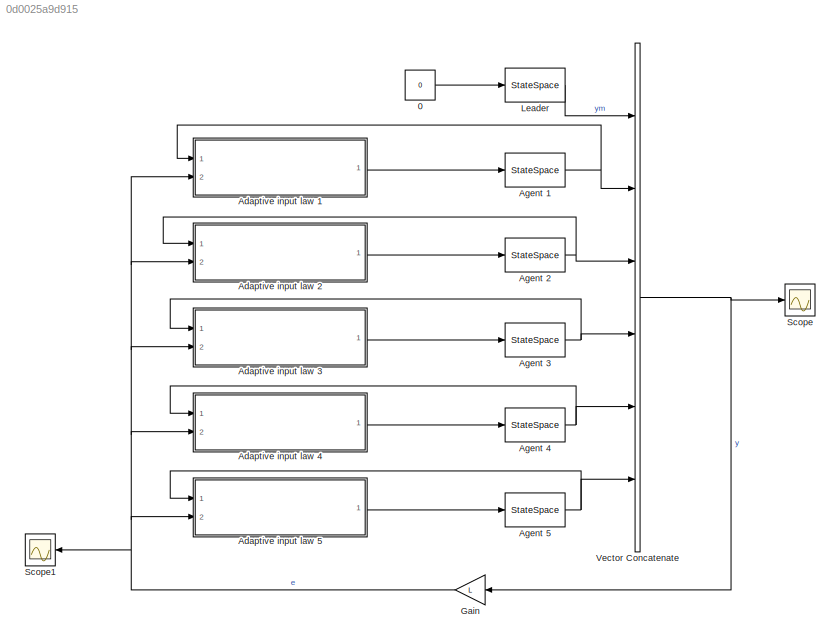
MODEL slx_0d0025a9d915
KIND model
CONFIG AbsTol = auto
CONFIG FixedStep = auto
CONFIG MaxStep = 0.01
CONFIG MinStep = auto
CONFIG RelTol = 1e-3
CONFIG SampleTimeConstraint = Unconstrained
CONFIG Solver = ode23tb
CONFIG SolverMode = SingleTasking
CONFIG SolverName = ode23tb
CONFIG StartTime = 0.0
CONFIG StopTime = 25
BLOCK [Constant] 0
  Value = 0
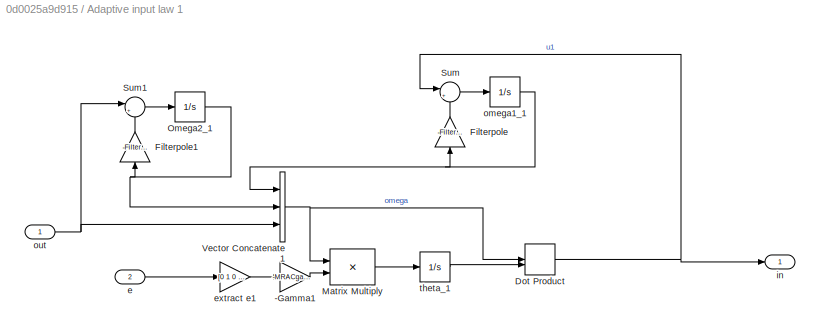
BLOCK [SubSystem] Adaptive input law 1
  Ports = [2, 1]
  RequestExecContextInheritance = off
BLOCK [Gain] Adaptive input law 1/-Gamma1
  Gain = -MRACgam1
  OutDataTypeStr = Inherit: Inherit via internal rule
  ParamDataTypeStr = Inherit: Inherit via internal rule
  SaturateOnIntegerOverflow = off
BLOCK [DotProduct] Adaptive input law 1/Dot Product
  OutDataTypeStr = Inherit: Inherit via internal rule
BLOCK [Gain] Adaptive input law 1/Filterpole
  Gain = -Filterpole
  OutDataTypeStr = Inherit: Inherit via internal rule
  ParamDataTypeStr = Inherit: Inherit via internal rule
  SaturateOnIntegerOverflow = off
BLOCK [Gain] Adaptive input law 1/Filterpole1
  Gain = -Filterpole
  OutDataTypeStr = Inherit: Inherit via internal rule
  ParamDataTypeStr = Inherit: Inherit via internal rule
  SaturateOnIntegerOverflow = off
BLOCK [Product] Adaptive input law 1/Matrix Multiply
  InputSameDT = off
  OutDataTypeStr = Inherit: Inherit via internal rule
  Ports = [2, 1]
  RndMeth = Floor
  SaturateOnIntegerOverflow = off
BLOCK [Integrator] Adaptive input law 1/Omega2_1
  InitialCondition = 1
  Ports = [1, 1]
BLOCK [Sum] Adaptive input law 1/Sum
  IconShape = round
  InputSameDT = off
  Inputs = |+-
  OutDataTypeStr = Inherit: Inherit via internal rule
  Ports = [2, 1]
  SaturateOnIntegerOverflow = off
BLOCK [Sum] Adaptive input law 1/Sum1
  IconShape = round
  InputSameDT = off
  Inputs = |+-
  OutDataTypeStr = Inherit: Inherit via internal rule
  Ports = [2, 1]
  SaturateOnIntegerOverflow = off
BLOCK [Concatenate] Adaptive input law 1/Vector Concatenate1
  NumInputs = 3
  Ports = [3, 1]
BLOCK [Inport] Adaptive input law 1/e
  IconDisplay = Port number
  Port = 2
BLOCK [Gain] Adaptive input law 1/extract e1
  Gain = [0 1 0 0 0 0]
  Multiplication = Matrix(K*u)
  OutDataTypeStr = Inherit: Inherit via internal rule
  ParamDataTypeStr = Inherit: Inherit via internal rule
  SaturateOnIntegerOverflow = off
BLOCK [Outport] Adaptive input law 1/in
  IconDisplay = Port number
BLOCK [Integrator] Adaptive input law 1/omega1_1
  InitialCondition = 1
  Ports = [1, 1]
BLOCK [Inport] Adaptive input law 1/out
  IconDisplay = Port number
BLOCK [Integrator] Adaptive input law 1/theta_1
  InitialCondition = [1;1;1]
  Ports = [1, 1]
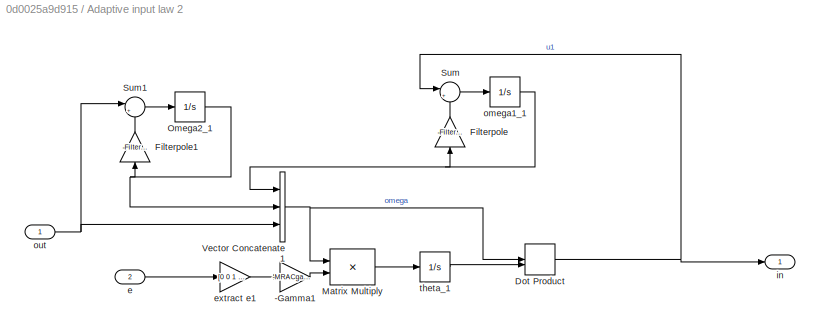
BLOCK [SubSystem] Adaptive input law 2
  Ports = [2, 1]
  RequestExecContextInheritance = off
BLOCK [Gain] Adaptive input law 2/-Gamma1
  Gain = -MRACgam2
  OutDataTypeStr = Inherit: Inherit via internal rule
  ParamDataTypeStr = Inherit: Inherit via internal rule
  SaturateOnIntegerOverflow = off
BLOCK [DotProduct] Adaptive input law 2/Dot Product
  OutDataTypeStr = Inherit: Inherit via internal rule
BLOCK [Gain] Adaptive input law 2/Filterpole
  Gain = -Filterpole
  OutDataTypeStr = Inherit: Inherit via internal rule
  ParamDataTypeStr = Inherit: Inherit via internal rule
  SaturateOnIntegerOverflow = off
BLOCK [Gain] Adaptive input law 2/Filterpole1
  Gain = -Filterpole
  OutDataTypeStr = Inherit: Inherit via internal rule
  ParamDataTypeStr = Inherit: Inherit via internal rule
  SaturateOnIntegerOverflow = off
BLOCK [Product] Adaptive input law 2/Matrix Multiply
  InputSameDT = off
  OutDataTypeStr = Inherit: Inherit via internal rule
  Ports = [2, 1]
  RndMeth = Floor
  SaturateOnIntegerOverflow = off
BLOCK [Integrator] Adaptive input law 2/Omega2_1
  InitialCondition = 1
  Ports = [1, 1]
BLOCK [Sum] Adaptive input law 2/Sum
  IconShape = round
  InputSameDT = off
  Inputs = |+-
  OutDataTypeStr = Inherit: Inherit via internal rule
  Ports = [2, 1]
  SaturateOnIntegerOverflow = off
BLOCK [Sum] Adaptive input law 2/Sum1
  IconShape = round
  InputSameDT = off
  Inputs = |+-
  OutDataTypeStr = Inherit: Inherit via internal rule
  Ports = [2, 1]
  SaturateOnIntegerOverflow = off
BLOCK [Concatenate] Adaptive input law 2/Vector Concatenate1
  NumInputs = 3
  Ports = [3, 1]
BLOCK [Inport] Adaptive input law 2/e
  IconDisplay = Port number
  Port = 2
BLOCK [Gain] Adaptive input law 2/extract e1
  Gain = [0 0 1 0 0 0]
  Multiplication = Matrix(K*u)
  OutDataTypeStr = Inherit: Inherit via internal rule
  ParamDataTypeStr = Inherit: Inherit via internal rule
  SaturateOnIntegerOverflow = off
BLOCK [Outport] Adaptive input law 2/in
  IconDisplay = Port number
BLOCK [Integrator] Adaptive input law 2/omega1_1
  InitialCondition = 1
  Ports = [1, 1]
BLOCK [Inport] Adaptive input law 2/out
  IconDisplay = Port number
BLOCK [Integrator] Adaptive input law 2/theta_1
  InitialCondition = [1;1;1]
  Ports = [1, 1]
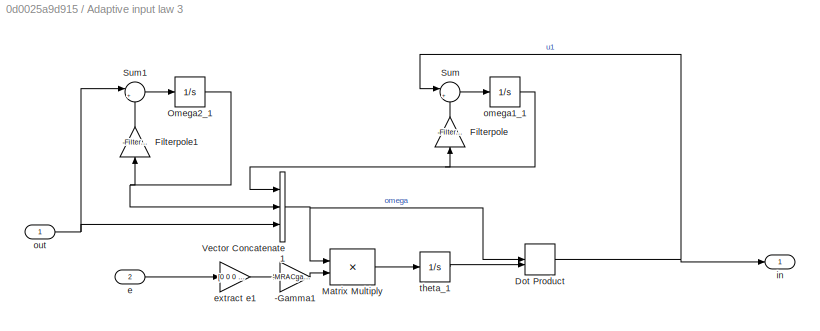
BLOCK [SubSystem] Adaptive input law 3
  Ports = [2, 1]
  RequestExecContextInheritance = off
BLOCK [Gain] Adaptive input law 3/-Gamma1
  Gain = -MRACgam3
  OutDataTypeStr = Inherit: Inherit via internal rule
  ParamDataTypeStr = Inherit: Inherit via internal rule
  SaturateOnIntegerOverflow = off
BLOCK [DotProduct] Adaptive input law 3/Dot Product
  OutDataTypeStr = Inherit: Inherit via internal rule
BLOCK [Gain] Adaptive input law 3/Filterpole
  Gain = -Filterpole
  OutDataTypeStr = Inherit: Inherit via internal rule
  ParamDataTypeStr = Inherit: Inherit via internal rule
  SaturateOnIntegerOverflow = off
BLOCK [Gain] Adaptive input law 3/Filterpole1
  Gain = -Filterpole
  OutDataTypeStr = Inherit: Inherit via internal rule
  ParamDataTypeStr = Inherit: Inherit via internal rule
  SaturateOnIntegerOverflow = off
BLOCK [Product] Adaptive input law 3/Matrix Multiply
  InputSameDT = off
  OutDataTypeStr = Inherit: Inherit via internal rule
  Ports = [2, 1]
  RndMeth = Floor
  SaturateOnIntegerOverflow = off
BLOCK [Integrator] Adaptive input law 3/Omega2_1
  InitialCondition = 1
  Ports = [1, 1]
BLOCK [Sum] Adaptive input law 3/Sum
  IconShape = round
  InputSameDT = off
  Inputs = |+-
  OutDataTypeStr = Inherit: Inherit via internal rule
  Ports = [2, 1]
  SaturateOnIntegerOverflow = off
BLOCK [Sum] Adaptive input law 3/Sum1
  IconShape = round
  InputSameDT = off
  Inputs = |+-
  OutDataTypeStr = Inherit: Inherit via internal rule
  Ports = [2, 1]
  SaturateOnIntegerOverflow = off
BLOCK [Concatenate] Adaptive input law 3/Vector Concatenate1
  NumInputs = 3
  Ports = [3, 1]
BLOCK [Inport] Adaptive input law 3/e
  IconDisplay = Port number
  Port = 2
BLOCK [Gain] Adaptive input law 3/extract e1
  Gain = [0 0 0 1 0 0]
  Multiplication = Matrix(K*u)
  OutDataTypeStr = Inherit: Inherit via internal rule
  ParamDataTypeStr = Inherit: Inherit via internal rule
  SaturateOnIntegerOverflow = off
BLOCK [Outport] Adaptive input law 3/in
  IconDisplay = Port number
BLOCK [Integrator] Adaptive input law 3/omega1_1
  InitialCondition = 1
  Ports = [1, 1]
BLOCK [Inport] Adaptive input law 3/out
  IconDisplay = Port number
BLOCK [Integrator] Adaptive input law 3/theta_1
  InitialCondition = [1;1;1]
  Ports = [1, 1]
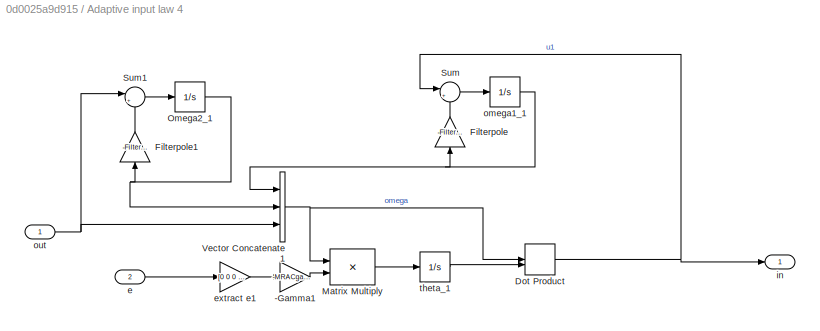
BLOCK [SubSystem] Adaptive input law 4
  Ports = [2, 1]
  RequestExecContextInheritance = off
BLOCK [Gain] Adaptive input law 4/-Gamma1
  Gain = -MRACgam4
  OutDataTypeStr = Inherit: Inherit via internal rule
  ParamDataTypeStr = Inherit: Inherit via internal rule
  SaturateOnIntegerOverflow = off
BLOCK [DotProduct] Adaptive input law 4/Dot Product
  OutDataTypeStr = Inherit: Inherit via internal rule
BLOCK [Gain] Adaptive input law 4/Filterpole
  Gain = -Filterpole
  OutDataTypeStr = Inherit: Inherit via internal rule
  ParamDataTypeStr = Inherit: Inherit via internal rule
  SaturateOnIntegerOverflow = off
BLOCK [Gain] Adaptive input law 4/Filterpole1
  Gain = -Filterpole
  OutDataTypeStr = Inherit: Inherit via internal rule
  ParamDataTypeStr = Inherit: Inherit via internal rule
  SaturateOnIntegerOverflow = off
BLOCK [Product] Adaptive input law 4/Matrix Multiply
  InputSameDT = off
  OutDataTypeStr = Inherit: Inherit via internal rule
  Ports = [2, 1]
  RndMeth = Floor
  SaturateOnIntegerOverflow = off
BLOCK [Integrator] Adaptive input law 4/Omega2_1
  InitialCondition = 1
  Ports = [1, 1]
BLOCK [Sum] Adaptive input law 4/Sum
  IconShape = round
  InputSameDT = off
  Inputs = |+-
  OutDataTypeStr = Inherit: Inherit via internal rule
  Ports = [2, 1]
  SaturateOnIntegerOverflow = off
BLOCK [Sum] Adaptive input law 4/Sum1
  IconShape = round
  InputSameDT = off
  Inputs = |+-
  OutDataTypeStr = Inherit: Inherit via internal rule
  Ports = [2, 1]
  SaturateOnIntegerOverflow = off
BLOCK [Concatenate] Adaptive input law 4/Vector Concatenate1
  NumInputs = 3
  Ports = [3, 1]
BLOCK [Inport] Adaptive input law 4/e
  IconDisplay = Port number
  Port = 2
BLOCK [Gain] Adaptive input law 4/extract e1
  Gain = [0 0 0 0 1 0]
  Multiplication = Matrix(K*u)
  OutDataTypeStr = Inherit: Inherit via internal rule
  ParamDataTypeStr = Inherit: Inherit via internal rule
  SaturateOnIntegerOverflow = off
BLOCK [Outport] Adaptive input law 4/in
  IconDisplay = Port number
BLOCK [Integrator] Adaptive input law 4/omega1_1
  InitialCondition = 1
  Ports = [1, 1]
BLOCK [Inport] Adaptive input law 4/out
  IconDisplay = Port number
BLOCK [Integrator] Adaptive input law 4/theta_1
  InitialCondition = [1;1;1]
  Ports = [1, 1]
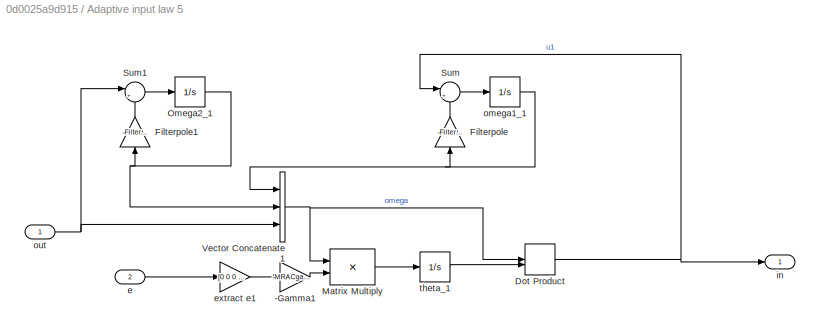
BLOCK [SubSystem] Adaptive input law 5
  Ports = [2, 1]
  RequestExecContextInheritance = off
BLOCK [Gain] Adaptive input law 5/-Gamma1
  Gain = -MRACgam5
  OutDataTypeStr = Inherit: Inherit via internal rule
  ParamDataTypeStr = Inherit: Inherit via internal rule
  SaturateOnIntegerOverflow = off
BLOCK [DotProduct] Adaptive input law 5/Dot Product
  OutDataTypeStr = Inherit: Inherit via internal rule
BLOCK [Gain] Adaptive input law 5/Filterpole
  Gain = -Filterpole
  OutDataTypeStr = Inherit: Inherit via internal rule
  ParamDataTypeStr = Inherit: Inherit via internal rule
  SaturateOnIntegerOverflow = off
BLOCK [Gain] Adaptive input law 5/Filterpole1
  Gain = -Filterpole
  OutDataTypeStr = Inherit: Inherit via internal rule
  ParamDataTypeStr = Inherit: Inherit via internal rule
  SaturateOnIntegerOverflow = off
BLOCK [Product] Adaptive input law 5/Matrix Multiply
  InputSameDT = off
  OutDataTypeStr = Inherit: Inherit via internal rule
  Ports = [2, 1]
  RndMeth = Floor
  SaturateOnIntegerOverflow = off
BLOCK [Integrator] Adaptive input law 5/Omega2_1
  InitialCondition = 1
  Ports = [1, 1]
BLOCK [Sum] Adaptive input law 5/Sum
  IconShape = round
  InputSameDT = off
  Inputs = |+-
  OutDataTypeStr = Inherit: Inherit via internal rule
  Ports = [2, 1]
  SaturateOnIntegerOverflow = off
BLOCK [Sum] Adaptive input law 5/Sum1
  IconShape = round
  InputSameDT = off
  Inputs = |+-
  OutDataTypeStr = Inherit: Inherit via internal rule
  Ports = [2, 1]
  SaturateOnIntegerOverflow = off
BLOCK [Concatenate] Adaptive input law 5/Vector Concatenate1
  NumInputs = 3
  Ports = [3, 1]
BLOCK [Inport] Adaptive input law 5/e
  IconDisplay = Port number
  Port = 2
BLOCK [Gain] Adaptive input law 5/extract e1
  Gain = [0 0 0 0 0 1]
  Multiplication = Matrix(K*u)
  OutDataTypeStr = Inherit: Inherit via internal rule
  ParamDataTypeStr = Inherit: Inherit via internal rule
  SaturateOnIntegerOverflow = off
BLOCK [Outport] Adaptive input law 5/in
  IconDisplay = Port number
BLOCK [Integrator] Adaptive input law 5/omega1_1
  InitialCondition = 1
  Ports = [1, 1]
BLOCK [Inport] Adaptive input law 5/out
  IconDisplay = Port number
BLOCK [Integrator] Adaptive input law 5/theta_1
  InitialCondition = [1;1;1]
  Ports = [1, 1]
BLOCK [StateSpace] Agent 1
  A = A1obs
  B = B1obs
  C = C1obs
  D = 0
  Ports = [1, 1]
  X0 = x01
BLOCK [StateSpace] Agent 2
  A = A2obs
  B = B2obs
  C = C2obs
  D = 0
  Ports = [1, 1]
  X0 = x02
BLOCK [StateSpace] Agent 3
  A = A3obs
  B = B3obs
  C = C3obs
  D = 0
  Ports = [1, 1]
  X0 = x03
BLOCK [StateSpace] Agent 4
  A = A4obs
  B = B4obs
  C = C4obs
  D = 0
  Ports = [1, 1]
  X0 = x04
BLOCK [StateSpace] Agent 5
  A = A5obs
  B = B5obs
  C = C5obs
  D = 0
  Ports = [1, 1]
  X0 = x05
BLOCK [Gain] Gain
  Gain = L
  Multiplication = Matrix(K*u)
  OutDataTypeStr = Inherit: Inherit via internal rule
  ParamDataTypeStr = Inherit: Inherit via internal rule
  SaturateOnIntegerOverflow = off
BLOCK [StateSpace] Leader
  A = Am
  B = Bm
  C = [0 1]
  D = 0
  Ports = [1, 1]
  X0 = x0m
BLOCK [Scope] Scope
  Floating = off
  NumInputPorts = 1
  Ports = [1]
  ScopeSpecificationString = Simulink.scopes.TimeScopeBlockCfg('CurrentConfiguration', extmgr.ConfigurationSet(extmgr.Configuration('Core','General UI',true),extmgr.Configuration('Core','Source UI',true),extmgr.Configuration('Sources','WiredSimulink',true),extmgr.Configuration('Visuals','Time Domain',true,'SerializedDisplays',{struct('MinYLimReal','-1.40178','MaxYLimReal','1.37158','YLabelReal','','MinYLimMag','0.00000','MaxY...<+1353ch>
BLOCK [Scope] Scope1
  Floating = off
  NumInputPorts = 1
  Ports = [1]
  ScopeSpecificationString = Simulink.scopes.TimeScopeBlockCfg('CurrentConfiguration', extmgr.ConfigurationSet(extmgr.Configuration('Core','General UI',true),extmgr.Configuration('Core','Source UI',true),extmgr.Configuration('Sources','WiredSimulink',true,'DataLoggingVariableName','ScopeData1'),extmgr.Configuration('Visuals','Time Domain',true,'SerializedDisplays',{struct('MinYLimReal','-2.00929','MaxYLimReal','3.00457','YLab...<+1438ch>
BLOCK [Concatenate] Vector Concatenate
  NumInputs = 6
  Ports = [6, 1]
LINE 0:1 -> Leader:1
LINE Adaptive input law 1/-Gamma1:1 -> Adaptive input law 1/Matrix Multiply:2
NET Adaptive input law 1/Dot Product:1 -> Adaptive input law 1/Sum:1, Adaptive input law 1/in:1
LINE Adaptive input law 1/Filterpole1:1 -> Adaptive input law 1/Sum1:2
LINE Adaptive input law 1/Filterpole:1 -> Adaptive input law 1/Sum:2
LINE Adaptive input law 1/Matrix Multiply:1 -> Adaptive input law 1/theta_1:1
NET Adaptive input law 1/Omega2_1:1 -> Adaptive input law 1/Filterpole1:1, Adaptive input law 1/Vector Concatenate1:2
LINE Adaptive input law 1/Sum1:1 -> Adaptive input law 1/Omega2_1:1
LINE Adaptive input law 1/Sum:1 -> Adaptive input law 1/omega1_1:1
NET Adaptive input law 1/Vector Concatenate1:1 -> Adaptive input law 1/Dot Product:1, Adaptive input law 1/Matrix Multiply:1
LINE Adaptive input law 1/e:1 -> Adaptive input law 1/extract e1:1
LINE Adaptive input law 1/extract e1:1 -> Adaptive input law 1/-Gamma1:1
NET Adaptive input law 1/omega1_1:1 -> Adaptive input law 1/Filterpole:1, Adaptive input law 1/Vector Concatenate1:1
NET Adaptive input law 1/out:1 -> Adaptive input law 1/Sum1:1, Adaptive input law 1/Vector Concatenate1:3
LINE Adaptive input law 1/theta_1:1 -> Adaptive input law 1/Dot Product:2
LINE Adaptive input law 1:1 -> Agent 1:1
LINE Adaptive input law 2/-Gamma1:1 -> Adaptive input law 2/Matrix Multiply:2
NET Adaptive input law 2/Dot Product:1 -> Adaptive input law 2/Sum:1, Adaptive input law 2/in:1
LINE Adaptive input law 2/Filterpole1:1 -> Adaptive input law 2/Sum1:2
LINE Adaptive input law 2/Filterpole:1 -> Adaptive input law 2/Sum:2
LINE Adaptive input law 2/Matrix Multiply:1 -> Adaptive input law 2/theta_1:1
NET Adaptive input law 2/Omega2_1:1 -> Adaptive input law 2/Filterpole1:1, Adaptive input law 2/Vector Concatenate1:2
LINE Adaptive input law 2/Sum1:1 -> Adaptive input law 2/Omega2_1:1
LINE Adaptive input law 2/Sum:1 -> Adaptive input law 2/omega1_1:1
NET Adaptive input law 2/Vector Concatenate1:1 -> Adaptive input law 2/Dot Product:1, Adaptive input law 2/Matrix Multiply:1
LINE Adaptive input law 2/e:1 -> Adaptive input law 2/extract e1:1
LINE Adaptive input law 2/extract e1:1 -> Adaptive input law 2/-Gamma1:1
NET Adaptive input law 2/omega1_1:1 -> Adaptive input law 2/Filterpole:1, Adaptive input law 2/Vector Concatenate1:1
NET Adaptive input law 2/out:1 -> Adaptive input law 2/Sum1:1, Adaptive input law 2/Vector Concatenate1:3
LINE Adaptive input law 2/theta_1:1 -> Adaptive input law 2/Dot Product:2
LINE Adaptive input law 2:1 -> Agent 2:1
LINE Adaptive input law 3/-Gamma1:1 -> Adaptive input law 3/Matrix Multiply:2
NET Adaptive input law 3/Dot Product:1 -> Adaptive input law 3/Sum:1, Adaptive input law 3/in:1
LINE Adaptive input law 3/Filterpole1:1 -> Adaptive input law 3/Sum1:2
LINE Adaptive input law 3/Filterpole:1 -> Adaptive input law 3/Sum:2
LINE Adaptive input law 3/Matrix Multiply:1 -> Adaptive input law 3/theta_1:1
NET Adaptive input law 3/Omega2_1:1 -> Adaptive input law 3/Filterpole1:1, Adaptive input law 3/Vector Concatenate1:2
LINE Adaptive input law 3/Sum1:1 -> Adaptive input law 3/Omega2_1:1
LINE Adaptive input law 3/Sum:1 -> Adaptive input law 3/omega1_1:1
NET Adaptive input law 3/Vector Concatenate1:1 -> Adaptive input law 3/Dot Product:1, Adaptive input law 3/Matrix Multiply:1
LINE Adaptive input law 3/e:1 -> Adaptive input law 3/extract e1:1
LINE Adaptive input law 3/extract e1:1 -> Adaptive input law 3/-Gamma1:1
NET Adaptive input law 3/omega1_1:1 -> Adaptive input law 3/Filterpole:1, Adaptive input law 3/Vector Concatenate1:1
NET Adaptive input law 3/out:1 -> Adaptive input law 3/Sum1:1, Adaptive input law 3/Vector Concatenate1:3
LINE Adaptive input law 3/theta_1:1 -> Adaptive input law 3/Dot Product:2
LINE Adaptive input law 3:1 -> Agent 3:1
LINE Adaptive input law 4/-Gamma1:1 -> Adaptive input law 4/Matrix Multiply:2
NET Adaptive input law 4/Dot Product:1 -> Adaptive input law 4/Sum:1, Adaptive input law 4/in:1
LINE Adaptive input law 4/Filterpole1:1 -> Adaptive input law 4/Sum1:2
LINE Adaptive input law 4/Filterpole:1 -> Adaptive input law 4/Sum:2
LINE Adaptive input law 4/Matrix Multiply:1 -> Adaptive input law 4/theta_1:1
NET Adaptive input law 4/Omega2_1:1 -> Adaptive input law 4/Filterpole1:1, Adaptive input law 4/Vector Concatenate1:2
LINE Adaptive input law 4/Sum1:1 -> Adaptive input law 4/Omega2_1:1
LINE Adaptive input law 4/Sum:1 -> Adaptive input law 4/omega1_1:1
NET Adaptive input law 4/Vector Concatenate1:1 -> Adaptive input law 4/Dot Product:1, Adaptive input law 4/Matrix Multiply:1
LINE Adaptive input law 4/e:1 -> Adaptive input law 4/extract e1:1
LINE Adaptive input law 4/extract e1:1 -> Adaptive input law 4/-Gamma1:1
NET Adaptive input law 4/omega1_1:1 -> Adaptive input law 4/Filterpole:1, Adaptive input law 4/Vector Concatenate1:1
NET Adaptive input law 4/out:1 -> Adaptive input law 4/Sum1:1, Adaptive input law 4/Vector Concatenate1:3
LINE Adaptive input law 4/theta_1:1 -> Adaptive input law 4/Dot Product:2
LINE Adaptive input law 4:1 -> Agent 4:1
LINE Adaptive input law 5/-Gamma1:1 -> Adaptive input law 5/Matrix Multiply:2
NET Adaptive input law 5/Dot Product:1 -> Adaptive input law 5/Sum:1, Adaptive input law 5/in:1
LINE Adaptive input law 5/Filterpole1:1 -> Adaptive input law 5/Sum1:2
LINE Adaptive input law 5/Filterpole:1 -> Adaptive input law 5/Sum:2
LINE Adaptive input law 5/Matrix Multiply:1 -> Adaptive input law 5/theta_1:1
NET Adaptive input law 5/Omega2_1:1 -> Adaptive input law 5/Filterpole1:1, Adaptive input law 5/Vector Concatenate1:2
LINE Adaptive input law 5/Sum1:1 -> Adaptive input law 5/Omega2_1:1
LINE Adaptive input law 5/Sum:1 -> Adaptive input law 5/omega1_1:1
NET Adaptive input law 5/Vector Concatenate1:1 -> Adaptive input law 5/Dot Product:1, Adaptive input law 5/Matrix Multiply:1
LINE Adaptive input law 5/e:1 -> Adaptive input law 5/extract e1:1
LINE Adaptive input law 5/extract e1:1 -> Adaptive input law 5/-Gamma1:1
NET Adaptive input law 5/omega1_1:1 -> Adaptive input law 5/Filterpole:1, Adaptive input law 5/Vector Concatenate1:1
NET Adaptive input law 5/out:1 -> Adaptive input law 5/Sum1:1, Adaptive input law 5/Vector Concatenate1:3
LINE Adaptive input law 5/theta_1:1 -> Adaptive input law 5/Dot Product:2
LINE Adaptive input law 5:1 -> Agent 5:1
NET Agent 1:1 -> Adaptive input law 1:1, Vector Concatenate:2
NET Agent 2:1 -> Adaptive input law 2:1, Vector Concatenate:3
NET Agent 3:1 -> Adaptive input law 3:1, Vector Concatenate:4
NET Agent 4:1 -> Adaptive input law 4:1, Vector Concatenate:5
NET Agent 5:1 -> Adaptive input law 5:1, Vector Concatenate:6
NET Gain:1 -> Adaptive input law 1:2, Adaptive input law 2:2, Adaptive input law 3:2, Adaptive input law 4:2, Adaptive input law 5:2, Scope1:1
LINE Leader:1 -> Vector Concatenate:1
NET Vector Concatenate:1 -> Gain:1, Scope:1
note: NET lines group one-source signal fan-out (src -> all destinations, sorted); 1:1 wires keep LINE
